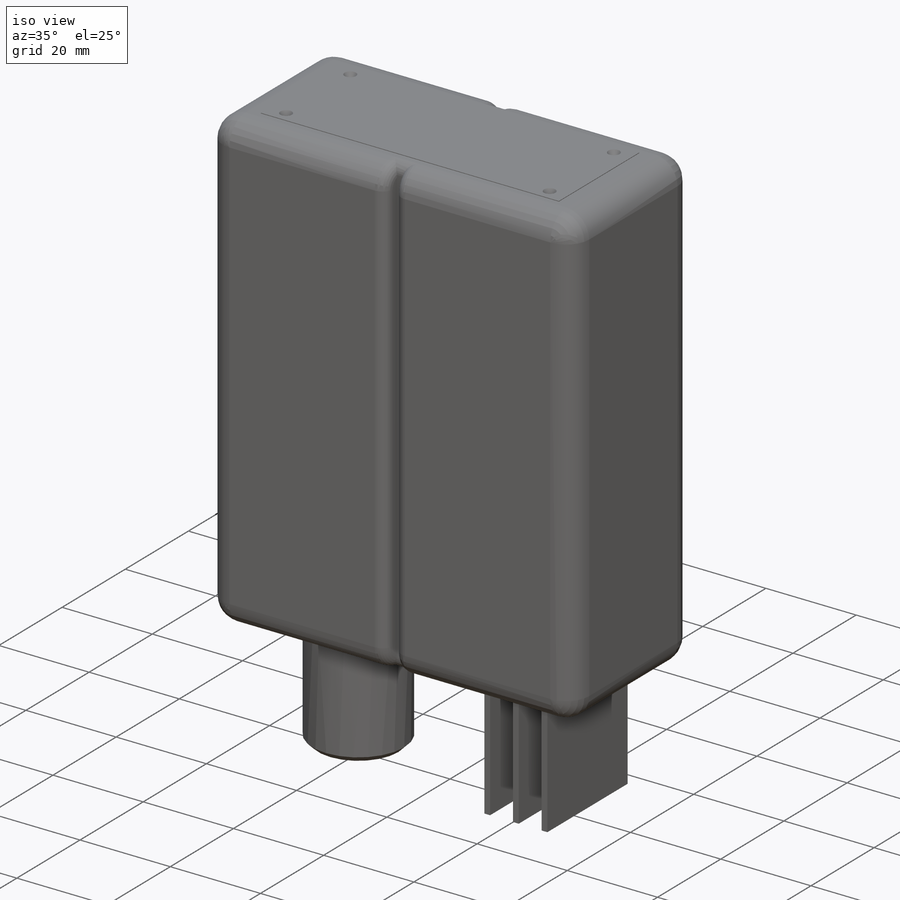
[diagram: iso view]
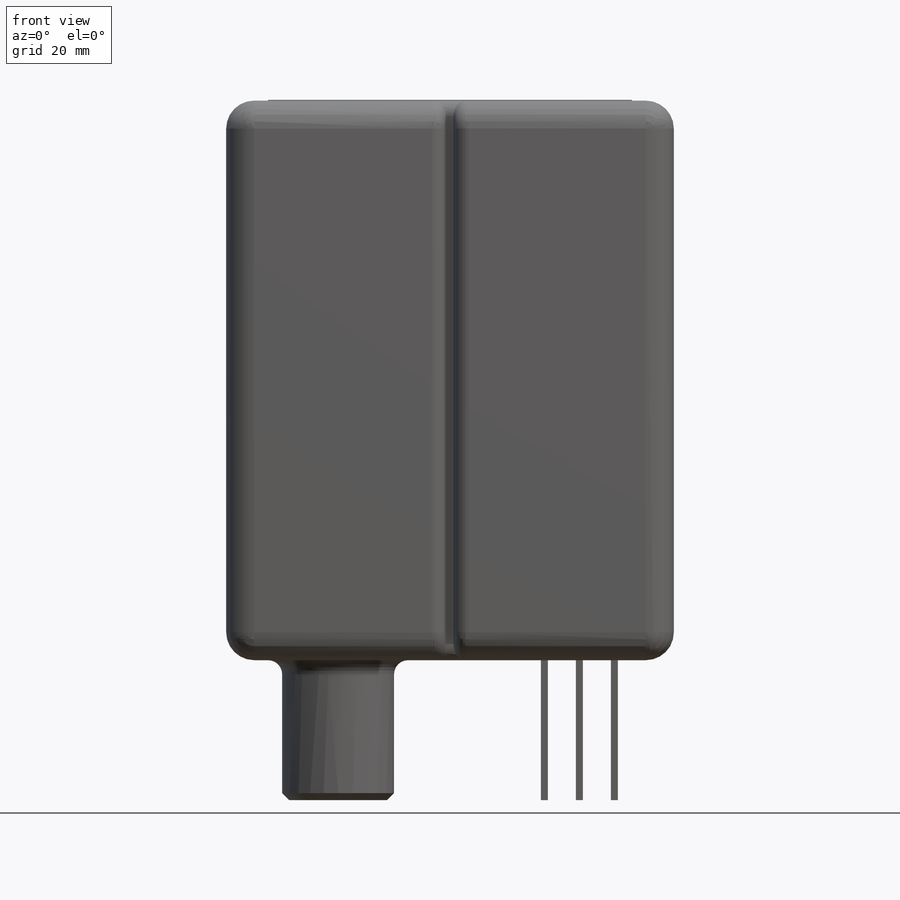
[diagram: front view]
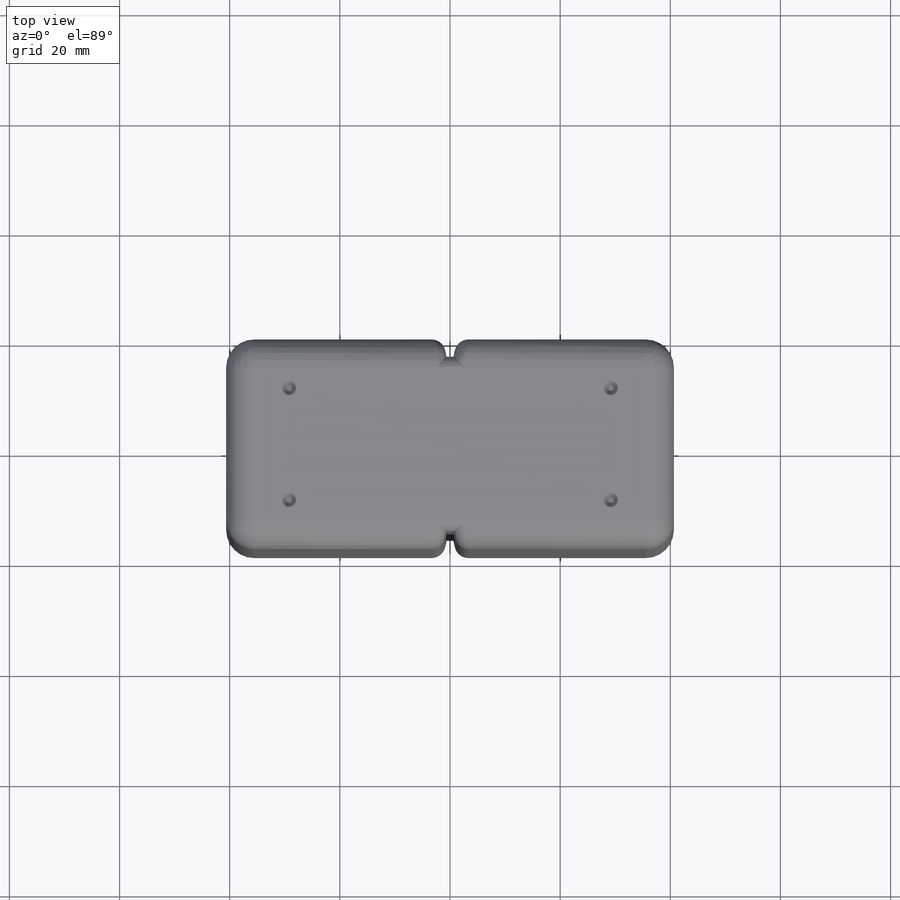
[diagram: top view]
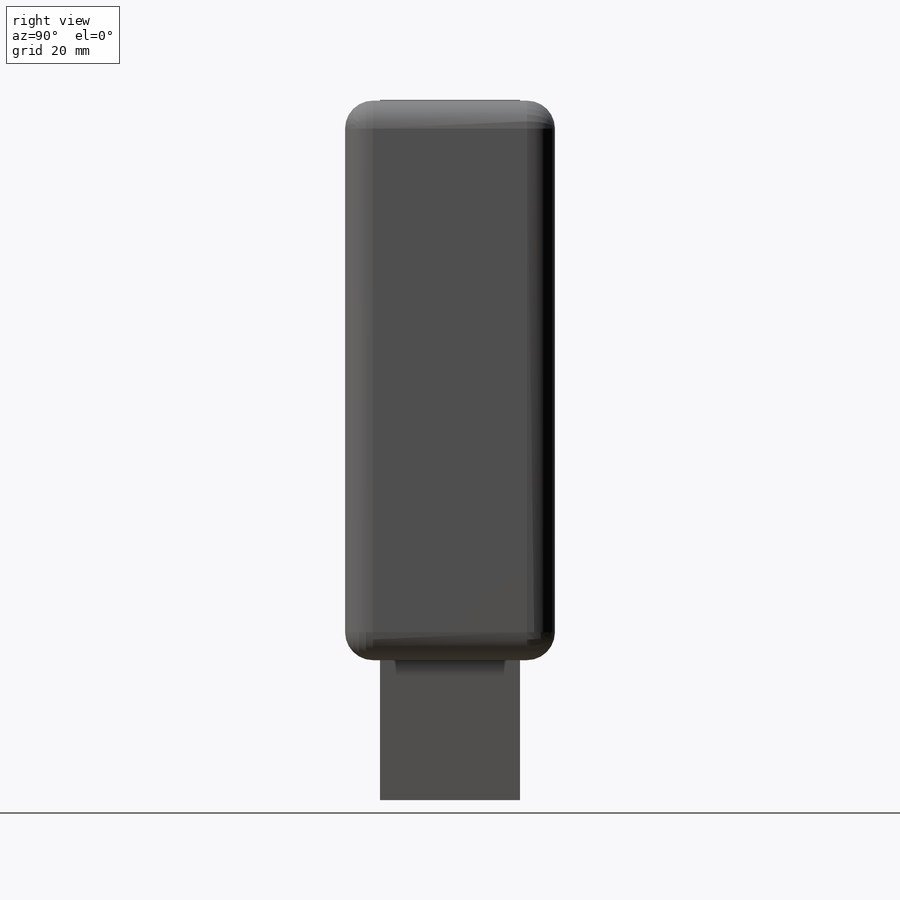
[diagram: right view]
SOLIDWORKS PART (.sldprt)
format: sldprt  version: not decoded by parser v0  size: 435,200 bytes
history: native  units: mm
features: sketch x5, fillet x4, extrude x3, cut_extrude x2, material x1, chamfer x1 (+13 scaffold rows collapsed)
feature tree (29):
  scaffold x13  (default folders/planes/origin — collapsed)
  material  "Material <not specified>"
  sketch  "Sketch2"  dims[D1=81.28mm D2=38.1mm]
  extrude  "Boss-Extrude1"  Depth=101.6mm
  fillet  "Fillet1"  Radius=5.08mm
  sketch  "Sketch3"  dims[D1=20.32mm D3=15.24mm D2=20.32mm D4=10.16mm D5=5.08mm D6=5.08mm D7=25.4mm D8=1.27mm]
  extrude  "Boss-Extrude2"  Depth=25.4mm
  chamfer  "Chamfer1"  Distance=1.27mm Angle=45deg
  fillet  "Fillet2"  Radius=2.54mm
  sketch  "Sketch4"  dims[D1=1.27mm D2=2.54mm]
  extrude  "Boss-Extrude3"  Depth=0.127mm
  sketch  "Sketch5"  dims[D3=2.54mm D1=3.81mm D2=2.54mm]
  cut_extrude  "Cut-Extrude1"  Depth=1.27mm
  sketch  "Sketch6"  dims[D1=1.27mm D2=2.54mm D3=3.175mm]
  cut_extrude  "Cut-Extrude2"  [1 undecoded]
  fillet  "Fillet3"  Radius=2.54mm
  fillet  "Fillet4"  Radius=2.54mm
decode coverage: 14 of 15 modeling features carry decoded parameters
note: 1 parameter value undecoded
note: suppression state not decoded; provenance and decode notes live in map.json
